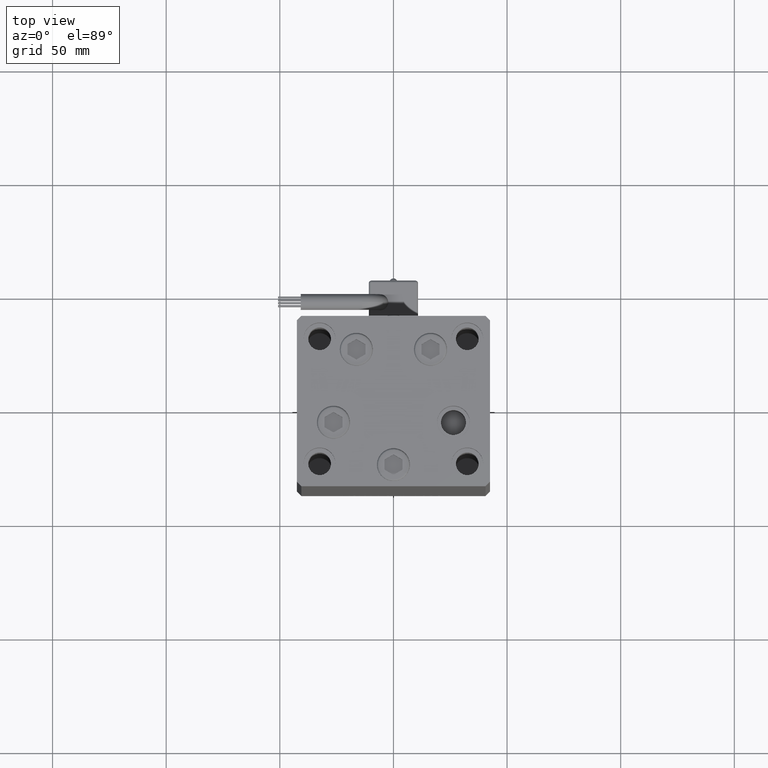
[diagram: clean part render]
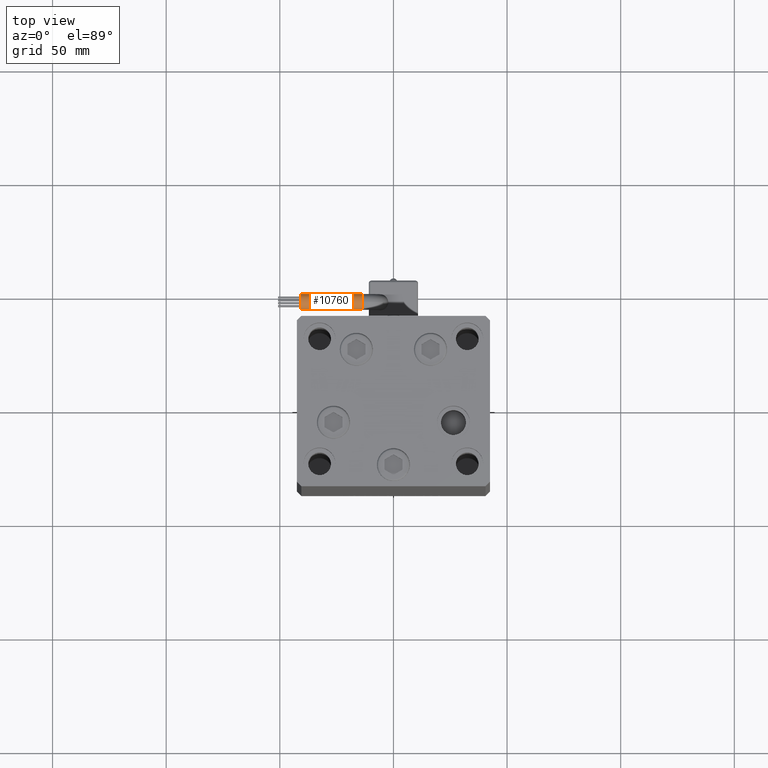
[diagram: same view with one face highlighted and labeled with its STEP entity id]
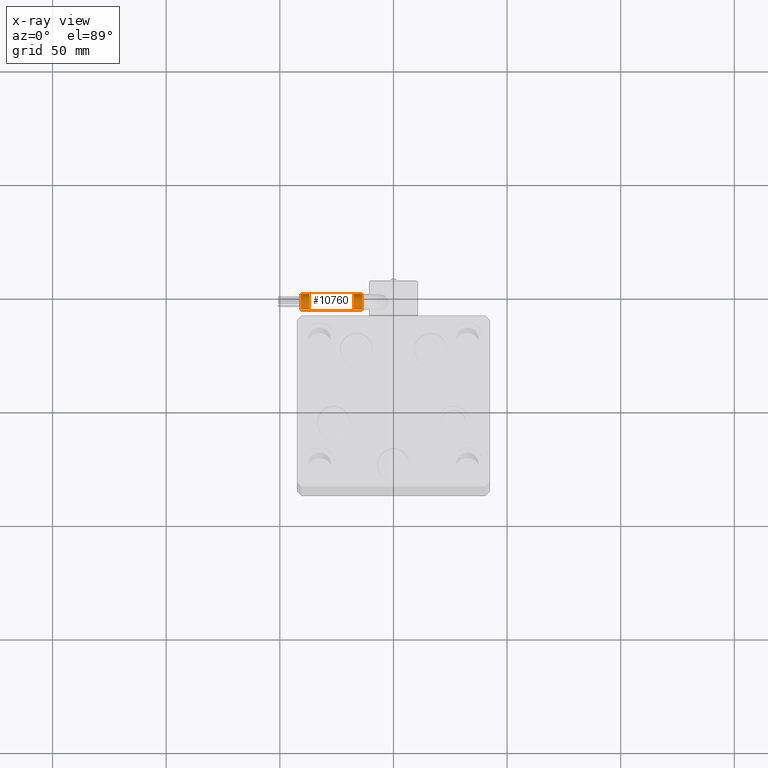
[diagram: x-ray of the same camera — body ghosted, the highlighted face saturated]
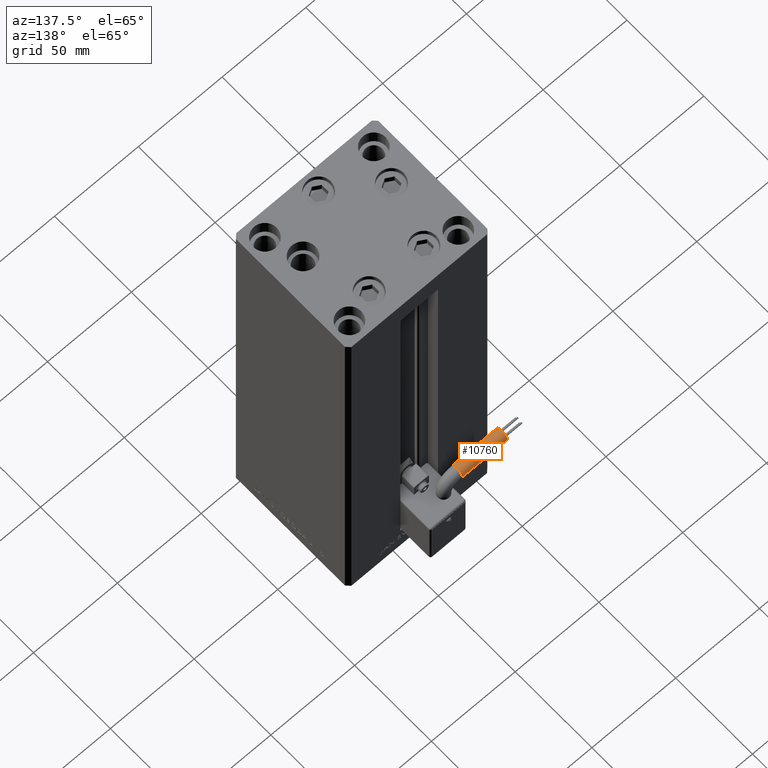
[diagram: same view with one face highlighted and labeled with its STEP entity id]
A machine part, top view. The second image highlights one B-rep face of the part: STEP entity #10760.
The next image is the same camera in x-ray: the body ghosted, the highlighted face saturated — about 0% of this face is hidden behind the body in this view.
A second angle (auxiliary view) of the same face is appended — the face is thin or edge-on in the first view.
In plain terms, the highlighted cylindrical surface (edge-blend (fillet) strip) has radius 3.5 mm, axis along (-1, 0, -0).
Its self-contained STEP definition (entity closure, byte-faithful):
#12 = ORIENTED_EDGE ( 'NONE', *, *, #28207, .T. ) ;
#564 = CARTESIAN_POINT ( 'NONE',  ( 13.80000000000000071, 45.50000000000000711, -65.00000000000000000 ) ) ;
#1159 = VERTEX_POINT ( 'NONE', #15863 ) ;
#1461 = DIRECTION ( 'NONE',  ( 0.000000000000000000, 0.000000000000000000, -1.000000000000000000 ) ) ;
#1885 = EDGE_LOOP ( 'NONE', ( #12, #40796, #10886, #46139, #50798 ) ) ;
#2941 = DIRECTION ( 'NONE',  ( 1.000000000000000000, 0.000000000000000000, 2.220446049250000002E-16 ) ) ;
#3862 = CARTESIAN_POINT ( 'NONE',  ( 13.79999999999999893, 42.00000000000000000, -68.50000000000000000 ) ) ;
#10117 = LINE ( 'NONE', #35533, #51516 ) ;
#10459 = VECTOR ( 'NONE', #25727, 1000.000000000000000 ) ;
#10760 = ADVANCED_FACE ( 'NONE', ( #47047 ), #31325, .T. ) ;
#10886 = ORIENTED_EDGE ( 'NONE', *, *, #38351, .T. ) ;
#15425 = VERTEX_POINT ( 'NONE', #46496 ) ;
#15863 = CARTESIAN_POINT ( 'NONE',  ( 13.79999999999999893, 38.50000000000000000, -65.00000000000000000 ) ) ;
#19675 = EDGE_CURVE ( 'NONE', #41684, #15425, #47923, .T. ) ;
#19725 = CARTESIAN_POINT ( 'NONE',  ( 13.79999999999999893, 42.00000000000000000, -65.00000000000000000 ) ) ;
#19787 = VERTEX_POINT ( 'NONE', #32025 ) ;
#22603 = AXIS2_PLACEMENT_3D ( 'NONE', #47569, #22945, #47829 ) ;
#22945 = DIRECTION ( 'NONE',  ( 1.000000000000000000, -2.599999999999999847E-16, 2.220446049250000002E-16 ) ) ;
#25724 = VERTEX_POINT ( 'NONE', #46919 ) ;
#25727 = DIRECTION ( 'NONE',  ( 1.000000000000000000, -2.599999999999999847E-16, 2.220446049250000002E-16 ) ) ;
#26094 = CARTESIAN_POINT ( 'NONE',  ( 40.80000000000000426, 42.00000000000000000, -65.00000000000000000 ) ) ;
#26343 = AXIS2_PLACEMENT_3D ( 'NONE', #43948, #47220, #39101 ) ;
#26562 = EDGE_CURVE ( 'NONE', #1159, #19787, #10117, .T. ) ;
#26626 = DIRECTION ( 'NONE',  ( 1.000000000000000000, -2.599999999999999847E-16, 2.220446049250000002E-16 ) ) ;
#28207 = EDGE_CURVE ( 'NONE', #1159, #41684, #34307, .T. ) ;
#30853 = EDGE_CURVE ( 'NONE', #19787, #25724, #46511, .T. ) ;
#31325 = CYLINDRICAL_SURFACE ( 'NONE', #22603, 3.500000000000003109 ) ;
#32025 = CARTESIAN_POINT ( 'NONE',  ( 40.80000000000000426, 38.50000000000000000, -65.00000000000000000 ) ) ;
#34307 = CIRCLE ( 'NONE', #51551, 3.500000000000003109 ) ;
#35533 = CARTESIAN_POINT ( 'NONE',  ( 13.79999999999999716, 38.50000000000000000, -65.00000000000000000 ) ) ;
#38351 = EDGE_CURVE ( 'NONE', #15425, #25724, #50343, .T. ) ;
#39101 = DIRECTION ( 'NONE',  ( 0.000000000000000000, 0.000000000000000000, -1.000000000000000000 ) ) ;
#40796 = ORIENTED_EDGE ( 'NONE', *, *, #19675, .T. ) ;
#41684 = VERTEX_POINT ( 'NONE', #3862 ) ;
#43948 = CARTESIAN_POINT ( 'NONE',  ( 13.79999999999999893, 42.00000000000000000, -65.00000000000000000 ) ) ;
#46120 = DIRECTION ( 'NONE',  ( 1.000000000000000000, 0.000000000000000000, 2.220446049250000002E-16 ) ) ;
#46139 = ORIENTED_EDGE ( 'NONE', *, *, #30853, .F. ) ;
#46496 = CARTESIAN_POINT ( 'NONE',  ( 13.79999999999999893, 45.50000000000000711, -65.00000000000000000 ) ) ;
#46511 = CIRCLE ( 'NONE', #49079, 3.500000000000003109 ) ;
#46919 = CARTESIAN_POINT ( 'NONE',  ( 40.80000000000000426, 45.50000000000000711, -65.00000000000000000 ) ) ;
#47047 = FACE_OUTER_BOUND ( 'NONE', #1885, .T. ) ;
#47220 = DIRECTION ( 'NONE',  ( 1.000000000000000000, 0.000000000000000000, 2.220446049250000002E-16 ) ) ;
#47569 = CARTESIAN_POINT ( 'NONE',  ( 13.79999999999999893, 42.00000000000000000, -65.00000000000000000 ) ) ;
#47829 = DIRECTION ( 'NONE',  ( -4.956352788505158337E-16, -1.000000000000000000, 0.000000000000000000 ) ) ;
#47923 = CIRCLE ( 'NONE', #26343, 3.500000000000003109 ) ;
#49079 = AXIS2_PLACEMENT_3D ( 'NONE', #26094, #46120, #1461 ) ;
#50343 = LINE ( 'NONE', #564, #10459 ) ;
#50798 = ORIENTED_EDGE ( 'NONE', *, *, #26562, .F. ) ;
#51516 = VECTOR ( 'NONE', #26626, 1000.000000000000000 ) ;
#51551 = AXIS2_PLACEMENT_3D ( 'NONE', #19725, #2941, #52722 ) ;
#52722 = DIRECTION ( 'NONE',  ( 0.000000000000000000, 0.000000000000000000, -1.000000000000000000 ) ) ;